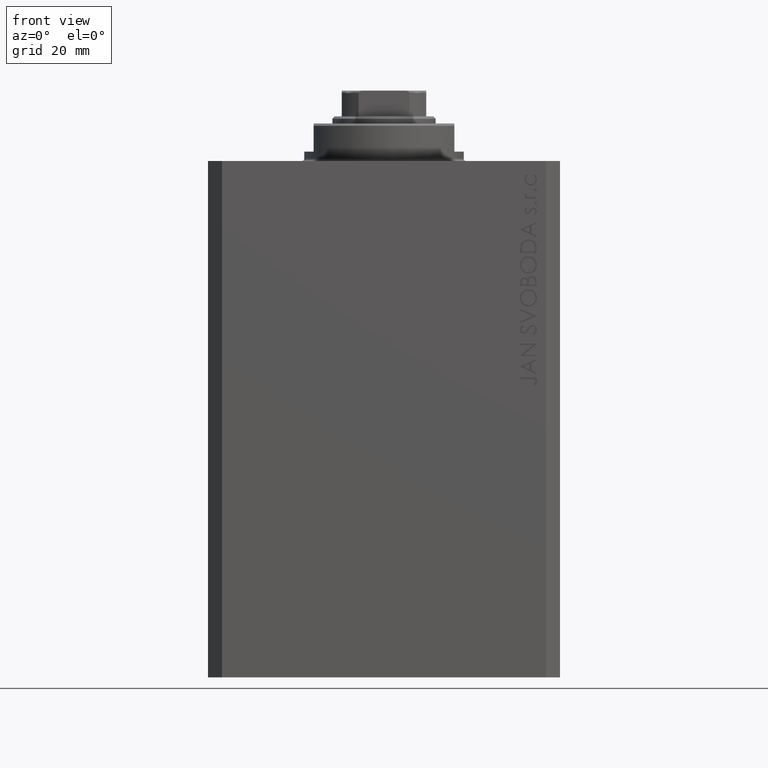
[diagram: clean part render]
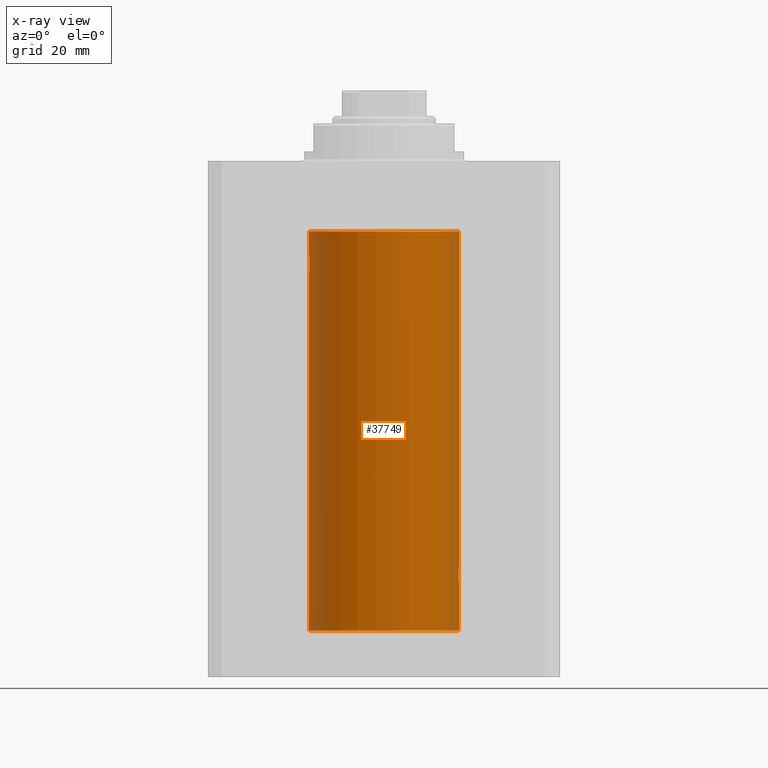
[diagram: x-ray — body ghosted, one internal face saturated and labeled with its STEP entity id]
A machine part, front view, then the same camera in x-ray: the body is ghosted and one INTERNAL B-rep face — a face not visible from any outside direction — is saturated and labeled: STEP entity #37749.
In plain terms, the highlighted cylindrical surface (partial cylindrical patch) has radius 16 mm, axis along (0, 0, 1).
Its self-contained STEP definition (entity closure, byte-faithful):
#388 = DIRECTION ( 'NONE',  ( 0.000000000000000000, 0.000000000000000000, 1.000000000000000000 ) ) ;
#1260 = CARTESIAN_POINT ( 'NONE',  ( 15.89879988731505911, -1.797417927657978476, -88.88681574633190507 ) ) ;
#1481 = CARTESIAN_POINT ( 'NONE',  ( 15.92086417679749744, -1.591036901625990430, -89.21887712688091199 ) ) ;
#1901 = DIRECTION ( 'NONE',  ( -0.000000000000000000, -0.000000000000000000, 1.000000000000000000 ) ) ;
#1982 = CARTESIAN_POINT ( 'NONE',  ( 15.95378323135041043, -1.229270712110467345, -86.40096078818024239 ) ) ;
#2065 = CARTESIAN_POINT ( 'NONE',  ( -15.87613558886575760, -1.987201773464425836, -21.73917179650635134 ) ) ;
#2144 = EDGE_CURVE ( 'NONE', #21309, #40668, #34335, .T. ) ;
#2742 = CARTESIAN_POINT ( 'NONE',  ( -16.00000000000000000, 8.139613661842072923E-16, -20.00000000000000000 ) ) ;
#3102 = LINE ( 'NONE', #37557, #41926 ) ;
#3593 = ORIENTED_EDGE ( 'NONE', *, *, #18847, .T. ) ;
#3662 = CARTESIAN_POINT ( 'NONE',  ( -16.00000000000000000, 1.959434878635765131E-15, -100.0999999999999943 ) ) ;
#3904 = CARTESIAN_POINT ( 'NONE',  ( -16.00000000000000000, 8.139613661842072923E-16, -20.00000000000000000 ) ) ;
#4081 = VERTEX_POINT ( 'NONE', #42362 ) ;
#4188 = CARTESIAN_POINT ( 'NONE',  ( 15.92916365170397874, -1.506747118993470913, -89.32161795328836718 ) ) ;
#4641 = CARTESIAN_POINT ( 'NONE',  ( 15.95367853504516020, -1.230571937713644592, -89.59797881284819709 ) ) ;
#4918 = CARTESIAN_POINT ( 'NONE',  ( -16.00000000000000000, 1.959434878635765131E-15, -100.0999999999999943 ) ) ;
#4938 = CARTESIAN_POINT ( 'NONE',  ( 15.88244988927328727, -1.936089665216105260, -87.48176817359480140 ) ) ;
#5064 = AXIS2_PLACEMENT_3D ( 'NONE', #36373, #1901, #5951 ) ;
#5445 = CARTESIAN_POINT ( 'NONE',  ( -15.88248768234623576, -1.935780515549986536, -22.51937114547926910 ) ) ;
#5771 = ORIENTED_EDGE ( 'NONE', *, *, #38145, .T. ) ;
#5893 = CARTESIAN_POINT ( 'NONE',  ( -15.97016854943970543, -1.005876079953899715, -23.74816627006212144 ) ) ;
#5951 = DIRECTION ( 'NONE',  ( 1.000000000000000000, 0.000000000000000000, 0.000000000000000000 ) ) ;
#6248 = AXIS2_PLACEMENT_3D ( 'NONE', #37354, #388, #34214 ) ;
#7079 = CARTESIAN_POINT ( 'NONE',  ( 15.87450786638774503, -1.999999999999695133, -88.00000000000000000 ) ) ;
#7282 = CARTESIAN_POINT ( 'NONE',  ( 16.00000000000000000, -2.738688404655786685E-23, -86.00000000000000000 ) ) ;
#7565 = CARTESIAN_POINT ( 'NONE',  ( 15.99312784302578372, -0.5270527724999303221, -89.94678796013921840 ) ) ;
#8773 = EDGE_LOOP ( 'NONE', ( #23355, #3593, #5771, #32789, #44432, #38498, #24475, #32236, #44544 ) ) ;
#9605 = CARTESIAN_POINT ( 'NONE',  ( 16.00000000000000000, 3.524002214059393877E-15, -90.00000000000000000 ) ) ;
#9936 = CARTESIAN_POINT ( 'NONE',  ( -15.97001510549667458, -1.008257970366809309, -20.25321871145306218 ) ) ;
#10206 = DIRECTION ( 'NONE',  ( -0.000000000000000000, -0.000000000000000000, 1.000000000000000000 ) ) ;
#11770 = CARTESIAN_POINT ( 'NONE',  ( -16.00000000000000000, 1.959434851239607631E-15, -23.99999999999999645 ) ) ;
#11901 = CARTESIAN_POINT ( 'NONE',  ( 15.99321095263419501, -0.5247071560218703468, -86.05253611177603545 ) ) ;
#12265 = VERTEX_POINT ( 'NONE', #4918 ) ;
#12650 = CARTESIAN_POINT ( 'NONE',  ( -15.87618369521984185, -1.986819684797414887, -22.26370462878176326 ) ) ;
#13044 = EDGE_CURVE ( 'NONE', #12265, #21309, #42226, .T. ) ;
#13151 = VECTOR ( 'NONE', #27561, 1000.000000000000000 ) ;
#13446 = LINE ( 'NONE', #40951, #19076 ) ;
#15216 = CARTESIAN_POINT ( 'NONE',  ( 15.88243572217633570, -1.936205349148615529, -88.51778019366463468 ) ) ;
#15371 = CARTESIAN_POINT ( 'NONE',  ( -15.90580722143557502, -1.735114343256360270, -23.00320784791317408 ) ) ;
#15723 = CARTESIAN_POINT ( 'NONE',  ( -16.00000000000000000, 1.959434851239607631E-15, -23.99999999999999645 ) ) ;
#15807 = CARTESIAN_POINT ( 'NONE',  ( -15.88239801746205515, -1.936513707523806360, -21.48335998918948775 ) ) ;
#15953 = CARTESIAN_POINT ( 'NONE',  ( 15.87450786638758338, -1.999999999999695133, -87.86772111890111603 ) ) ;
#15972 = EDGE_CURVE ( 'NONE', #20134, #40668, #43712, .T. ) ;
#16093 = CYLINDRICAL_SURFACE ( 'NONE', #5064, 16.00000000000000000 ) ;
#17946 = CARTESIAN_POINT ( 'NONE',  ( 16.00000000000000711, -0.2643851093299312560, -89.99999999999998579 ) ) ;
#18063 = CIRCLE ( 'NONE', #38901, 16.00000000000000000 ) ;
#18236 = VECTOR ( 'NONE', #10206, 1000.000000000000000 ) ;
#18267 = CARTESIAN_POINT ( 'NONE',  ( 0.000000000000000000, 0.000000000000000000, -15.00000000000000000 ) ) ;
#18847 = EDGE_CURVE ( 'NONE', #12265, #37309, #13446, .T. ) ;
#19076 = VECTOR ( 'NONE', #23603, 1000.000000000000000 ) ;
#19197 = CARTESIAN_POINT ( 'NONE',  ( -15.87449600834271379, -2.000094120337571280, -21.86919591423420783 ) ) ;
#19339 = CARTESIAN_POINT ( 'NONE',  ( 15.90575552528889247, -1.735587436575120934, -86.99760376191683520 ) ) ;
#19420 = CARTESIAN_POINT ( 'NONE',  ( -15.99321727742820620, -0.5244724041436311657, -23.94751141031268560 ) ) ;
#19645 = CARTESIAN_POINT ( 'NONE',  ( -15.92928245046054769, -1.505501573616968347, -23.32304844713207359 ) ) ;
#20134 = VERTEX_POINT ( 'NONE', #7079 ) ;
#20320 = CARTESIAN_POINT ( 'NONE',  ( -16.00000000000000711, -0.2645044045393378229, -20.00000000000000355 ) ) ;
#20446 = DIRECTION ( 'NONE',  ( -0.000000000000000000, -0.000000000000000000, 1.000000000000000000 ) ) ;
#21088 = B_SPLINE_CURVE_WITH_KNOTS ( 'NONE', 3,
 ( #11770, #39262, #19420, #5893, #32948, #19645, #22583, #15371, #22810, #39701, #5445, #12650, #29123, #19197, #2065, #15807, #22143, #42875, #29557, #39923, #29792, #23469, #9936, #26628, #20320, #2742 ),
 .UNSPECIFIED., .F., .F.,
 ( 4, 2, 2, 2, 2, 2, 2, 2, 2, 2, 2, 2, 4 ),
 ( 0.006259031236593881609, 0.007041222816026950632, 0.007823414395460019655, 0.008214510185176554166, 0.008605605974893088678, 0.008996701764609623189, 0.009387797554326157701, 0.009778893344042692212, 0.01016998913375922672, 0.01056108492347576124, 0.01095218071319229575, 0.01173437229262535783, 0.01251656387205841645 ),
 .UNSPECIFIED. ) ;
#21200 = DIRECTION ( 'NONE',  ( 1.000000000000000000, 0.000000000000000000, 0.000000000000000000 ) ) ;
#21309 = VERTEX_POINT ( 'NONE', #39149 ) ;
#21992 = CARTESIAN_POINT ( 'NONE',  ( 15.87450786638757982, -1.999999999999695133, -88.13215961561486722 ) ) ;
#22064 = CARTESIAN_POINT ( 'NONE',  ( 15.92092149944864410, -1.590465714389863949, -86.78037678790906284 ) ) ;
#22143 = CARTESIAN_POINT ( 'NONE',  ( -15.88709570026284545, -1.898087287925293687, -21.35623329282659455 ) ) ;
#22434 = VERTEX_POINT ( 'NONE', #7282 ) ;
#22583 = CARTESIAN_POINT ( 'NONE',  ( -15.92097237843274904, -1.589957129871026664, -23.22028033478411047 ) ) ;
#22810 = CARTESIAN_POINT ( 'NONE',  ( -15.89889131367402619, -1.796613193944150755, -22.88846140829279463 ) ) ;
#22955 = CARTESIAN_POINT ( 'NONE',  ( 15.89884071244566854, -1.797059837015411610, -87.11243238313522852 ) ) ;
#23355 = ORIENTED_EDGE ( 'NONE', *, *, #13044, .F. ) ;
#23469 = CARTESIAN_POINT ( 'NONE',  ( -15.95364199493483426, -1.231048876942798298, -20.40236864042801912 ) ) ;
#23603 = DIRECTION ( 'NONE',  ( -0.000000000000000000, -0.000000000000000000, 1.000000000000000000 ) ) ;
#24475 = ORIENTED_EDGE ( 'NONE', *, *, #32390, .T. ) ;
#25443 = CARTESIAN_POINT ( 'NONE',  ( 15.97014368282246366, -1.006292663714016600, -86.25205598760368275 ) ) ;
#25593 = CARTESIAN_POINT ( 'NONE',  ( 15.87615728668762394, -1.987029298095570828, -88.26211076195546923 ) ) ;
#25664 = CARTESIAN_POINT ( 'NONE',  ( 15.87450786638774503, -1.999999999999695133, -88.00000000000000000 ) ) ;
#26628 = CARTESIAN_POINT ( 'NONE',  ( -15.99312147175147381, -0.5272875822566800430, -20.05325995304360376 ) ) ;
#27561 = DIRECTION ( 'NONE',  ( -0.000000000000000000, -0.000000000000000000, 1.000000000000000000 ) ) ;
#28318 = CARTESIAN_POINT ( 'NONE',  ( 15.97003999263321283, -1.007841982684946291, -89.74700387082582154 ) ) ;
#28533 = CARTESIAN_POINT ( 'NONE',  ( 15.90570493127647289, -1.736048731325449790, -89.00159606390616318 ) ) ;
#28753 = CARTESIAN_POINT ( 'NONE',  ( 16.00000000000000000, 3.524002214059393877E-15, -90.00000000000000000 ) ) ;
#29031 = VERTEX_POINT ( 'NONE', #31275 ) ;
#29043 = CARTESIAN_POINT ( 'NONE',  ( 16.00000000000000000, -2.738688404655786685E-23, -86.00000000000000000 ) ) ;
#29123 = CARTESIAN_POINT ( 'NONE',  ( -15.87451985347842687, -1.999904855391102299, -22.13366663175617788 ) ) ;
#29557 = CARTESIAN_POINT ( 'NONE',  ( -15.90565326803670665, -1.736521253711138968, -20.99921634246594948 ) ) ;
#29792 = CARTESIAN_POINT ( 'NONE',  ( -15.92911555180481820, -1.507256214862781496, -20.67895665196595445 ) ) ;
#31275 = CARTESIAN_POINT ( 'NONE',  ( 16.00000000000000000, 0.000000000000000000, -15.00000000000000000 ) ) ;
#31651 = EDGE_CURVE ( 'NONE', #22434, #29031, #3102, .T. ) ;
#32141 = CARTESIAN_POINT ( 'NONE',  ( 15.87450786638774503, -1.999999999999695133, -88.00000000000000000 ) ) ;
#32236 = ORIENTED_EDGE ( 'NONE', *, *, #15972, .T. ) ;
#32390 = EDGE_CURVE ( 'NONE', #22434, #20134, #41689, .T. ) ;
#32432 = CARTESIAN_POINT ( 'NONE',  ( 15.92923429551377623, -1.506011695761385827, -86.67752618423779154 ) ) ;
#32789 = ORIENTED_EDGE ( 'NONE', *, *, #33163, .T. ) ;
#32948 = CARTESIAN_POINT ( 'NONE',  ( -15.95381972293796835, -1.228793614424116054, -23.59938581325380014 ) ) ;
#33163 = EDGE_CURVE ( 'NONE', #41767, #4081, #41306, .T. ) ;
#33323 = CARTESIAN_POINT ( 'NONE',  ( 15.87616187040659810, -1.986993191151173788, -87.73757767630262094 ) ) ;
#34214 = DIRECTION ( 'NONE',  ( 1.000000000000000000, 0.000000000000000000, 0.000000000000000000 ) ) ;
#34335 = LINE ( 'NONE', #34550, #18236 ) ;
#34550 = CARTESIAN_POINT ( 'NONE',  ( 16.00000000000000000, 0.000000000000000000, -100.0999999999999943 ) ) ;
#35800 = CARTESIAN_POINT ( 'NONE',  ( 15.88715711325523472, -1.897577117346632258, -87.35470827059133114 ) ) ;
#36373 = CARTESIAN_POINT ( 'NONE',  ( 0.000000000000000000, 0.000000000000000000, -100.0999999999999943 ) ) ;
#37309 = VERTEX_POINT ( 'NONE', #15723 ) ;
#37354 = CARTESIAN_POINT ( 'NONE',  ( 0.000000000000000000, 0.000000000000000000, -100.0999999999999943 ) ) ;
#37557 = CARTESIAN_POINT ( 'NONE',  ( 16.00000000000000000, 0.000000000000000000, -100.0999999999999943 ) ) ;
#37749 = ADVANCED_FACE ( 'NONE', ( #40216 ), #16093, .F. ) ;
#38145 = EDGE_CURVE ( 'NONE', #37309, #41767, #21088, .T. ) ;
#38318 = EDGE_CURVE ( 'NONE', #4081, #29031, #18063, .T. ) ;
#38498 = ORIENTED_EDGE ( 'NONE', *, *, #31651, .F. ) ;
#38901 = AXIS2_PLACEMENT_3D ( 'NONE', #18267, #42156, #21200 ) ;
#39149 = CARTESIAN_POINT ( 'NONE',  ( 16.00000000000000000, 0.000000000000000000, -100.0999999999999943 ) ) ;
#39182 = CARTESIAN_POINT ( 'NONE',  ( 16.00000000000000355, -0.2612440807804993215, -86.00000000000004263 ) ) ;
#39262 = CARTESIAN_POINT ( 'NONE',  ( -16.00000000000000355, -0.2611263091397176828, -24.00000000000000711 ) ) ;
#39701 = CARTESIAN_POINT ( 'NONE',  ( -15.88720136683946826, -1.897207606501643218, -22.64636362870457376 ) ) ;
#39923 = CARTESIAN_POINT ( 'NONE',  ( -15.92081325887754950, -1.591545514129665495, -20.78178127159715061 ) ) ;
#40216 = FACE_OUTER_BOUND ( 'NONE', #8773, .T. ) ;
#40668 = VERTEX_POINT ( 'NONE', #9605 ) ;
#40951 = CARTESIAN_POINT ( 'NONE',  ( -16.00000000000000000, 1.959434878635765131E-15, -100.0999999999999943 ) ) ;
#41306 = LINE ( 'NONE', #3662, #13151 ) ;
#41689 = B_SPLINE_CURVE_WITH_KNOTS ( 'NONE', 3,
 ( #29043, #39182, #11901, #25443, #1982, #32432, #22064, #19339, #22955, #35800, #4938, #33323, #15953, #25664 ),
 .UNSPECIFIED., .F., .F.,
 ( 4, 2, 2, 2, 2, 2, 4 ),
 ( 0.006259031236594497435, 0.007041575595439277316, 0.007824119954284057196, 0.008215392133706433259, 0.008606664313128807586, 0.008997936492551183649, 0.009389208671973559711 ),
 .UNSPECIFIED. ) ;
#41767 = VERTEX_POINT ( 'NONE', #3904 ) ;
#41926 = VECTOR ( 'NONE', #20446, 1000.000000000000000 ) ;
#42156 = DIRECTION ( 'NONE',  ( 0.000000000000000000, 0.000000000000000000, 1.000000000000000000 ) ) ;
#42226 = CIRCLE ( 'NONE', #6248, 16.00000000000000000 ) ;
#42286 = CARTESIAN_POINT ( 'NONE',  ( 15.88713982474484254, -1.897718960373744324, -88.64483805877635803 ) ) ;
#42362 = CARTESIAN_POINT ( 'NONE',  ( -16.00000000000000000, 1.959434878635765131E-15, -15.00000000000000000 ) ) ;
#42875 = CARTESIAN_POINT ( 'NONE',  ( -15.89874935709249826, -1.797863738508693299, -21.11407850031504196 ) ) ;
#43712 = B_SPLINE_CURVE_WITH_KNOTS ( 'NONE', 3,
 ( #32141, #21992, #25593, #15216, #42286, #1260, #28533, #1481, #4188, #4641, #28318, #7565, #17946, #28753 ),
 .UNSPECIFIED., .F., .F.,
 ( 4, 2, 2, 2, 2, 2, 4 ),
 ( 0.009389208671973559711, 0.009780128071984169405, 0.01017104747199477910, 0.01056196687200538879, 0.01095288627201599849, 0.01173472507203721961, 0.01251656387205843900 ),
 .UNSPECIFIED. ) ;
#44432 = ORIENTED_EDGE ( 'NONE', *, *, #38318, .T. ) ;
#44544 = ORIENTED_EDGE ( 'NONE', *, *, #2144, .F. ) ;